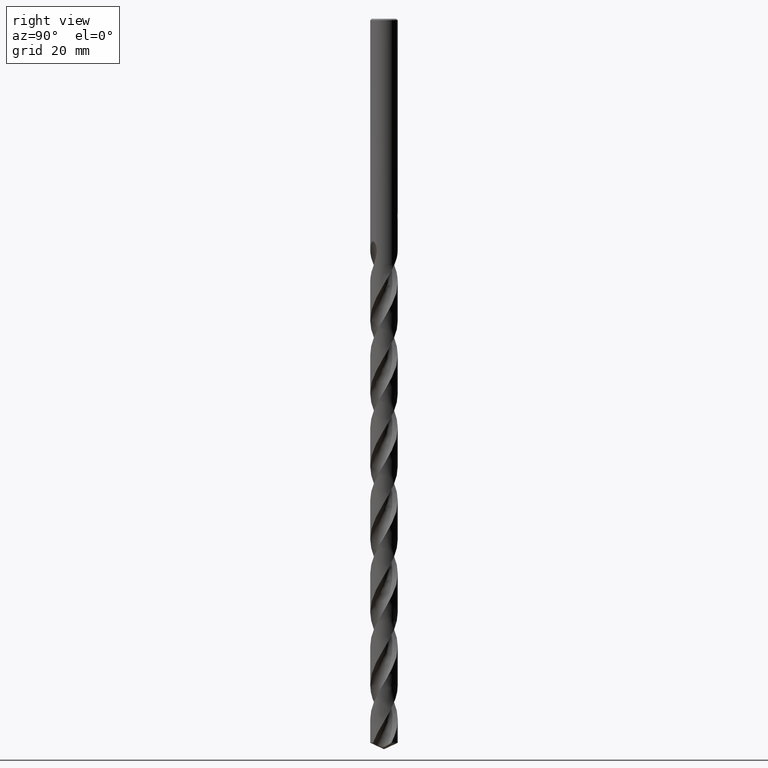
[diagram: clean part render]
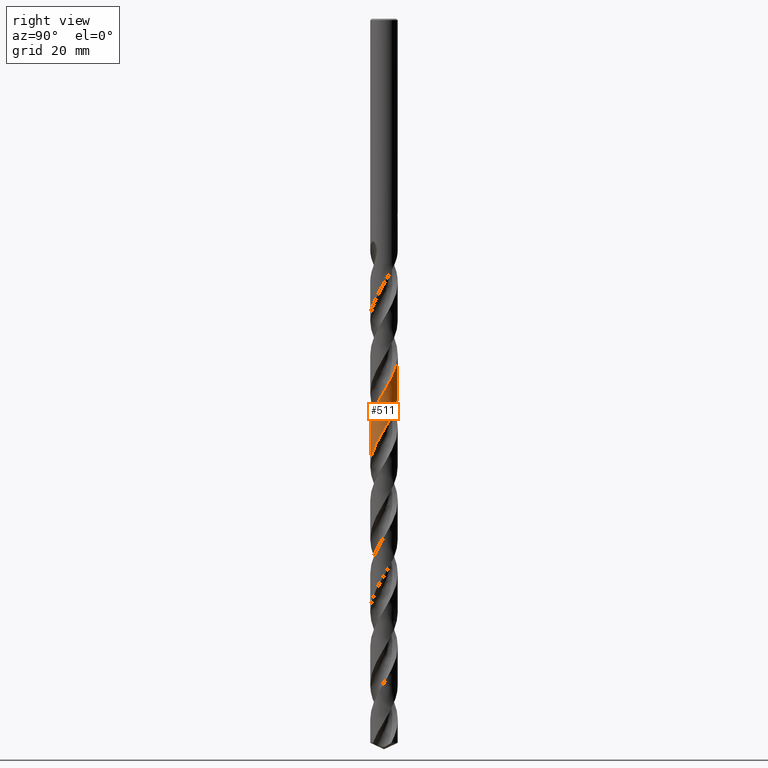
[diagram: same view with one face highlighted and labeled with its STEP entity id]
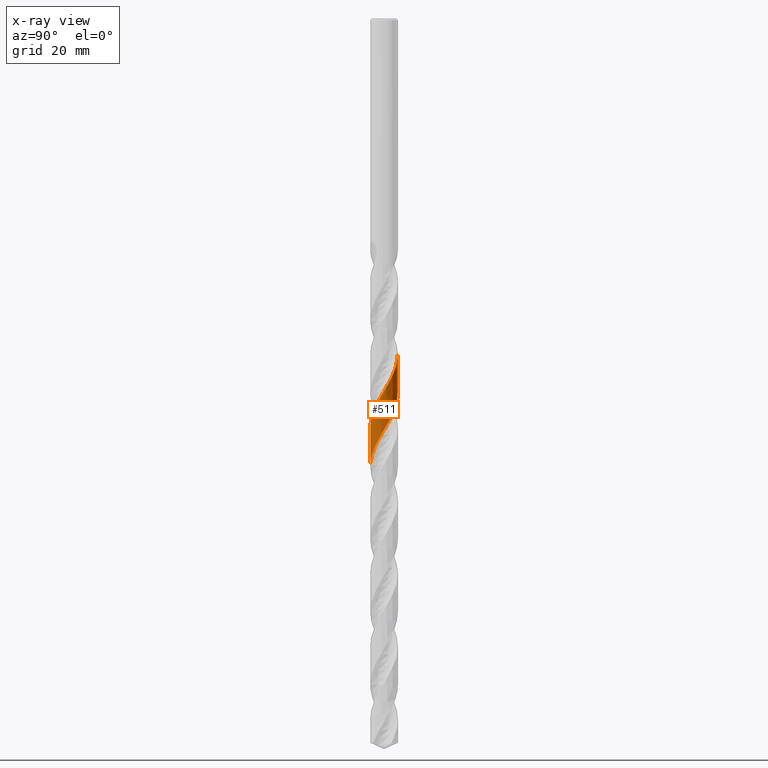
[diagram: x-ray of the same camera — body ghosted, the highlighted face saturated]
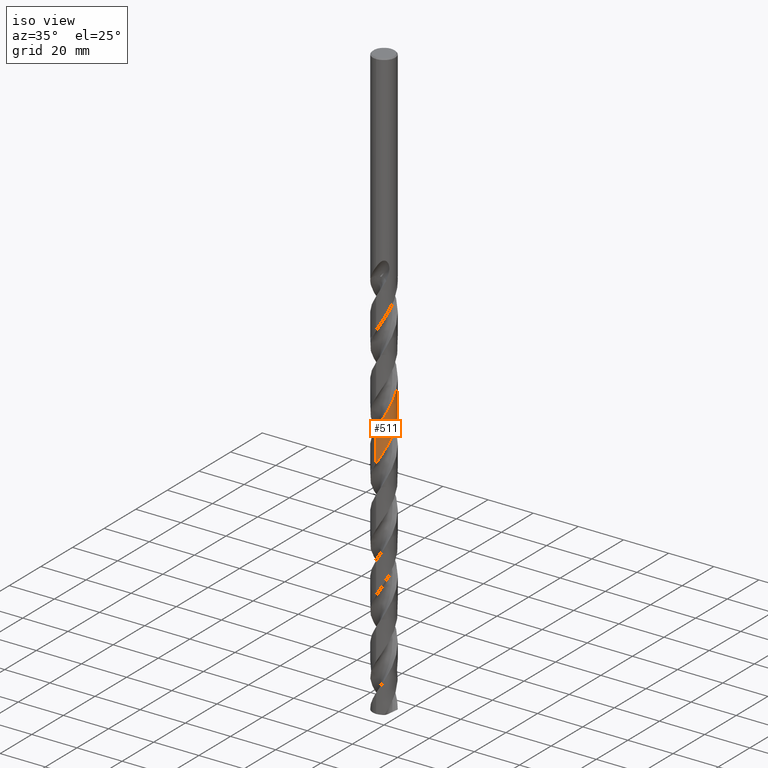
[diagram: same view with one face highlighted and labeled with its STEP entity id]
A machine part, right view. The second image highlights one B-rep face of the part: STEP entity #511.
The next image is the same camera in x-ray: the body ghosted, the highlighted face saturated — about 0% of this face is hidden behind the body in this view.
A second angle (iso view) of the same face is appended — the face is thin or edge-on in the first view.
In plain terms, the highlighted conical surface has half-angle 0 deg.
Its self-contained STEP definition (entity closure, byte-faithful):
#359=VERTEX_POINT('',#937);
#395=EDGE_CURVE('',#559,#359,#975,.T.);
#425=EDGE_CURVE('',#545,#727,#1008,.T.);
#511=ADVANCED_FACE('',(#1104),#1105,.T.);
#545=VERTEX_POINT('',#1142);
#559=VERTEX_POINT('',#1156);
#661=EDGE_CURVE('',#545,#359,#1269,.T.);
#727=VERTEX_POINT('',#1340);
#853=EDGE_CURVE('',#559,#727,#1474,.T.);
#937=CARTESIAN_POINT('',(4.36509085141036E-012,4.99992699948131,-135.889583836875));
#975=LINE('',#6249,#6250);
#1008=LINE('',#8836,#8837);
#1104=FACE_OUTER_BOUND('',#10660,.T.);
#1105=CONICAL_SURFACE('',#10661,4.99995,5.75809787312949E-007);
#1142=CARTESIAN_POINT('',(6.17980756881777E-012,-4.99994223192752,-162.343538856057));
#1156=CARTESIAN_POINT('',(-2.60632550954982E-014,4.99991897141173,-121.947358917492));
#1269=B_SPLINE_CURVE_WITH_KNOTS('',3,(#14558,#14559,#14560,#14561,#14562,#14563,#14564,#14565,#14566,#14567,#14568,#14569,#14570,#14571,#14572,#14573,#14574,#14575,#14576,#14577,#14578,#14579,#14580,#14581,#14582,#14583,#14584,#14585,#14586,#14587,#14588,#14589,#14590,#14591,#14592,#14593,#14594,#14595,#14596,#14597,#14598,#14599,#14600,#14601,#14602,#14603,#14604,#14605,#14606,#14607,#14608,#14609,#14610,#14611,#14612,#14613,#14614,#14615,#14616,#14617,#14618,#14619,#14620,#14621,#14622,#14623,#14624,#14625,#14626,#14627,#14628,#14629,#14630,#14631,#14632,#14633,#14634,#14635,#14636,#14637,#14638,#14639,#14640,#14641,#14642,#14643,#14644,#14645,#14646,#14647,#14648,#14649,#14650,#14651,#14652,#14653,#14654,#14655,#14656,#14657,#14658,#14659,#14660,#14661,#14662,#14663,#14664,#14665,#14666,#14667,#14668,#14669,#14670,#14671,#14672,#14673,#14674,#14675,#14676,#14677,#14678,#14679,#14680,#14681,#14682,#14683,#14684,#14685,#14686,#14687,#14688,#14689,#14690,#14691,#14692,#14693,#14694,#14695,#14696,#14697,#14698,#14699,#14700,#14701,#14702,#14703,#14704,#14705,#14706,#14707,#14708,#14709,#14710,#14711,#14712,#14713,#14714,#14715,#14716,#14717,#14718,#14719,#14720,#14721,#14722,#14723,#14724,#14725,#14726,#14727,#14728,#14729,#14730,#14731,#14732,#14733,#14734,#14735,#14736,#14737,#14738,#14739,#14740,#14741,#14742,#14743,#14744,#14745,#14746,#14747,#14748,#14749,#14750,#14751,#14752,#14753,#14754,#14755,#14756,#14757,#14758,#14759,#14760,#14761,#14762,#14763,#14764,#14765,#14766,#14767,#14768,#14769,#14770,#14771,#14772,#14773,#14774,#14775,#14776,#14777,#14778,#14779,#14780,#14781,#14782,#14783,#14784,#14785,#14786,#14787,#14788,#14789,#14790,#14791,#14792,#14793,#14794,#14795,#14796,#14797,#14798,#14799,#14800,#14801,#14802,#14803,#14804,#14805,#14806,#14807,#14808,#14809,#14810,#14811,#14812,#14813,#14814,#14815,#14816,#14817,#14818,#14819,#14820,#14821,#14822,#14823,#14824,#14825,#14826,#14827,#14828,#14829,#14830,#14831,#14832,#14833,#14834,#14835,#14836,#14837,#14838,#14839,#14840,#14841,#14842,#14843,#14844,#14845,#14846,#14847,#14848,#14849,#14850,#14851,#14852,#14853,#14854,#14855),.UNSPECIFIED.,.F.,.F.,(4,2,2,2,2,2,2,2,2,2,2,2,2,2,2,2,2,2,2,2,2,2,2,2,2,2,2,2,2,2,2,2,2,2,2,2,2,2,2,2,2,2,2,2,2,2,2,2,2,2,2,2,2,2,2,2,2,2,2,2,2,2,2,2,2,2,2,2,2,2,2,2,2,2,2,2,2,2,2,2,2,2,2,2,2,2,2,2,2,2,2,2,2,2,2,2,2,2,2,2,2,2,2,2,2,2,2,2,2,2,2,2,2,2,2,2,2,2,2,2,2,2,2,2,2,2,2,2,2,2,2,2,2,2,2,2,2,2,2,2,2,2,2,2,2,2,2,2,4),(0.0,3.63092053248191,3.7691620184671,6.03348487665055,8.0469296444137,9.15530465158286,10.6858725973857,12.3223462129399,14.6102414959239,15.9651958078881,17.0891393279092,18.7346474536644,21.0373664522481,22.8707935806306,23.1939952154213,25.7825353407723,26.5593347333323,28.0407851094805,29.0085748083132,29.7708620923296,31.2488308606676,33.5406915438034,35.0406320416408,36.5310462128202,37.9115202322241,38.590179684919,39.3775294281662,40.8316956697733,41.5858751965656,42.6262510521607,44.1226818348683,46.5754515316867,47.6414510942108,49.9913822828124,51.5039628617097,52.2626833031142,53.7494600441074,55.0190745081184,55.1800763891425,57.57363837445,58.9840166639243,60.3745749894417,61.0956116948758,61.8881703917055,63.3432411834746,65.5898753520117,67.086220845805,68.3850911603997,69.9196985107638,72.7358457748535,73.6413968446596,75.0052332637271,76.3258413891122,78.5725063265606,80.0708949993093,81.5629012316738,83.1145427181494,85.489986877928,86.9362136758373,87.6938126543482,89.1850316896571,91.6811970772674,92.8109871587646,94.1846573257394,95.7403141464202,96.3746999956665,97.5214003578232,99.0794308170751,101.513364658178,102.932405976061,104.467571446549,106.629686497563,106.788899681004,109.197213874844,110.697348350723,112.104209896364,114.284201900323,115.339270466572,117.795484133206,118.731030565162,120.07509376705,121.706440431129,122.801450923436,122.879788960974,125.236096263122,126.706392577401,128.098291368499,130.737580022881,132.143977262708,132.87706205027,134.413429778621,136.74695391876,137.864965954265,140.162534753403,141.52396441993,142.933364300206,144.416862014505,145.671636411232,147.125399294215,148.045149393847,148.812672158692,151.533197267321,152.22664752454,153.835307301096,154.629364073175,155.374698356365,156.870973258538,157.607551531928,158.735363485831,160.07483495405,162.384287609561,163.889378589707,165.267048038706,166.59189438351,167.23348233804,168.37732797623,170.987607724718,171.313003659003,173.930602077886,174.693763401801,176.169113599196,178.477391666545,180.635091058613,180.96408692391,183.550264963447,184.338622818834,187.180907723722,187.259926042525,189.614008985541,190.86979194547,192.364668463624,194.621764592159,195.778551505454,197.663983594507,198.906554845058,199.454322903826,199.852651721785,200.162922504211,200.411371640628,200.681273317122,201.223370648177,201.892062888729,202.00496394292,202.056619043981,202.110331920396,202.190207229054,202.410570028968,202.741458202628,203.482240467201),.UNSPECIFIED.);
#1340=CARTESIAN_POINT('',(-3.70064187752294E-013,-4.99993420495158,-148.4032132677));
#1474=B_SPLINE_CURVE_WITH_KNOTS('',3,(#17958,#17959,#17960,#17961,#17962,#17963,#17964,#17965,#17966,#17967,#17968,#17969,#17970,#17971,#17972,#17973,#17974,#17975,#17976,#17977,#17978,#17979,#17980,#17981,#17982,#17983,#17984,#17985,#17986,#17987,#17988,#17989,#17990,#17991,#17992,#17993,#17994,#17995,#17996,#17997,#17998,#17999,#18000,#18001,#18002,#18003,#18004,#18005,#18006,#18007,#18008,#18009,#18010,#18011,#18012,#18013,#18014,#18015,#18016,#18017,#18018,#18019,#18020,#18021,#18022,#18023,#18024,#18025,#18026,#18027,#18028,#18029,#18030,#18031,#18032,#18033,#18034,#18035,#18036,#18037,#18038,#18039,#18040,#18041,#18042,#18043,#18044,#18045,#18046,#18047,#18048,#18049,#18050,#18051,#18052,#18053,#18054,#18055,#18056,#18057,#18058,#18059,#18060,#18061,#18062,#18063,#18064,#18065,#18066,#18067,#18068,#18069,#18070,#18071,#18072,#18073,#18074,#18075,#18076,#18077,#18078,#18079,#18080,#18081,#18082,#18083,#18084,#18085,#18086,#18087,#18088,#18089,#18090,#18091,#18092,#18093,#18094,#18095,#18096,#18097,#18098,#18099,#18100,#18101,#18102,#18103,#18104,#18105,#18106,#18107,#18108,#18109,#18110,#18111,#18112,#18113,#18114,#18115,#18116,#18117,#18118,#18119,#18120,#18121,#18122,#18123,#18124,#18125,#18126,#18127,#18128,#18129,#18130,#18131,#18132,#18133,#18134,#18135,#18136,#18137,#18138,#18139,#18140,#18141,#18142,#18143,#18144,#18145,#18146,#18147,#18148,#18149,#18150,#18151,#18152,#18153,#18154,#18155,#18156,#18157,#18158,#18159,#18160,#18161,#18162,#18163,#18164,#18165,#18166,#18167,#18168,#18169,#18170,#18171,#18172,#18173,#18174,#18175,#18176,#18177,#18178,#18179,#18180,#18181,#18182,#18183,#18184,#18185,#18186,#18187,#18188,#18189,#18190,#18191,#18192,#18193,#18194,#18195,#18196,#18197,#18198,#18199,#18200,#18201,#18202,#18203,#18204,#18205,#18206,#18207,#18208,#18209,#18210,#18211,#18212,#18213,#18214,#18215,#18216,#18217,#18218,#18219,#18220,#18221,#18222,#18223,#18224,#18225,#18226,#18227,#18228,#18229,#18230,#18231,#18232,#18233,#18234,#18235,#18236,#18237,#18238,#18239,#18240,#18241,#18242,#18243,#18244,#18245,#18246,#18247,#18248,#18249,#18250,#18251,#18252,#18253,#18254,#18255,#18256,#18257,#18258,#18259,#18260,#18261,#18262,#18263),.UNSPECIFIED.,.F.,.F.,(4,2,2,2,2,2,2,2,2,2,2,2,2,2,2,2,2,2,2,2,2,2,2,2,2,2,2,2,2,2,2,2,2,2,2,2,2,2,2,2,2,2,2,2,2,2,2,2,2,2,2,2,2,2,2,2,2,2,2,2,2,2,2,2,2,2,2,2,2,2,2,2,2,2,2,2,2,2,2,2,2,2,2,2,2,2,2,2,2,2,2,2,2,2,2,2,2,2,2,2,2,2,2,2,2,2,2,2,2,2,2,2,2,2,2,2,2,2,2,2,2,2,2,2,2,2,2,2,2,2,2,2,2,2,2,2,2,2,2,2,2,2,2,2,2,2,2,2,2,2,2,2,4),(0.0,0.435718244669395,0.484115058358754,0.509547155672166,0.526948108052865,0.541206287881215,0.554756775117761,0.569361690210161,0.589321679638141,1.23088281591887,1.33036124792312,1.37777474453361,1.41498424339849,1.45565341487665,1.52114544487498,2.23945374253507,2.49490551552909,2.88014624343983,3.05234088393166,3.19027321112109,3.40695112636331,3.71450287752233,4.08795675222742,4.54635631762029,5.6154586405041,6.66358801104034,7.95430692856862,8.88074156269015,9.91010539370236,11.1951891797998,12.2696482439908,12.363952082922,13.8304381564295,14.7238366680834,15.9303035386406,18.1412035731552,19.0159523272185,21.2524735287823,21.6849867942879,23.3120654346752,24.0700652995132,25.0803370115881,27.048186096614,28.1235027824136,30.0531394477758,31.1905202843448,33.1533961631485,34.238585295826,36.1907352092983,37.2891483193302,39.2178325277,40.355858526431,42.3191103328568,43.4026693540429,45.3532242651398,46.45300489638,48.3816255742354,49.5187014856505,51.4820416487001,52.5643974165011,54.5133176604822,55.6145450368524,57.5431920454964,58.6791618008643,60.642504915263,61.7237804901362,63.6710477217583,64.7737666545098,66.702525281252,67.8372423045221,69.8005053352163,70.8808196599829,72.8264205301536,73.9306688504008,75.8596218246577,76.9929454212579,78.9560475791676,80.0355160325098,81.9794420687737,83.0852504914018,85.0144782377346,86.1462735020148,88.1091357249122,89.1878706648457,91.1301179931045,92.2375102075488,94.1670891904594,95.2972294603141,97.2597759128816,98.3378850879144,100.278455477358,101.387446807391,103.317450810369,104.445815596917,106.407972446904,107.485560625961,109.424460623151,110.535058712832,112.465557412411,113.592034971721,115.553731832232,116.630898841482,118.568140209571,119.680344247009,121.611403147042,122.735889986719,124.697058702968,125.773901363608,127.709501253891,128.823301901087,130.75498238407,131.877383638057,133.837959281179,134.914569876875,136.848550488797,137.96392950896,139.89628755998,141.016518646269,142.976439628191,144.052906179797,145.985294661805,147.102225246887,149.035311557212,150.15329761879,152.112504599725,153.188912015202,155.11974070463,156.238187223916,158.172046896295,159.287723297696,161.246161046282,162.322589140616,164.251892295722,165.371813229801,167.306492431198,168.419799194383,170.3773997645,171.453926600902,173.381736985084,174.503178285877,176.438989084359,177.54916554017,179.503943013977,180.584207849557,182.518687522359,183.626550062319,185.528823229327,186.697684240062,189.027023665197,189.428987736049,190.842674362714,191.752328624974,192.670301681998),.UNSPECIFIED.);
#6249=CARTESIAN_POINT('',(-6.12165648169813E-016,4.99995,-175.834230854612));
#6250=VECTOR('',#18391,1.0);
#8836=CARTESIAN_POINT('',(6.12428459589027E-016,-4.99995,-175.834230854612));
#8837=VECTOR('',#18430,1.0);
#10660=EDGE_LOOP('',(#18528,#18529,#18530,#18531));
#10661=AXIS2_PLACEMENT_3D('',#18532,#18533,#18534);
#14558=CARTESIAN_POINT('',(3.03679725239329,-3.97213575395612,-262.668461709225));
#14559=CARTESIAN_POINT('',(3.52684900053038,-3.59747816609057,-261.627153093576));
#14560=CARTESIAN_POINT('',(3.94248477536741,-3.13609300664103,-260.60778213217));
#14561=CARTESIAN_POINT('',(4.27596659826116,-2.59164810724516,-259.527929359572));
#14562=CARTESIAN_POINT('',(4.28803581695184,-2.57162945997533,-259.488357998234));
#14563=CARTESIAN_POINT('',(4.49556431567559,-2.22188704805663,-258.800390287791));
#14564=CARTESIAN_POINT('',(4.6529224461154,-1.87036089099153,-258.158315731614));
#14565=CARTESIAN_POINT('',(4.87144133905287,-1.17729277840814,-256.9355924767));
#14566=CARTESIAN_POINT('',(4.94054501574536,-0.841472529316061,-256.35830108257));
#14567=CARTESIAN_POINT('',(4.99370751013422,-0.313573823249625,-255.466061096519));
#14568=CARTESIAN_POINT('',(5.00197407816321,-0.1252425680951,-255.150006935315));
#14569=CARTESIAN_POINT('',(4.99631559683138,0.323153473249027,-254.395766751147));
#14570=CARTESIAN_POINT('',(4.97275487728657,0.582225352931965,-253.956790880425));
#14571=CARTESIAN_POINT('',(4.88276567653834,1.11153551822427,-253.051722542234));
#14572=CARTESIAN_POINT('',(4.81355335539646,1.38088878218298,-252.586501787028));
#14573=CARTESIAN_POINT('',(4.59455338748823,2.01020490116651,-251.465827342495));
#14574=CARTESIAN_POINT('',(4.42462729248939,2.36083961806752,-250.810520701846));
#14575=CARTESIAN_POINT('',(4.09199524366141,2.88243766416769,-249.770330008639));
#14576=CARTESIAN_POINT('',(3.95511184395409,3.06754154408989,-249.384713816806));
#14577=CARTESIAN_POINT('',(3.68250003173209,3.38754214522923,-248.676565753594));
#14578=CARTESIAN_POINT('',(3.55085951436434,3.52527826501567,-248.354487464593));
#14579=CARTESIAN_POINT('',(3.20778837358346,3.84548498652609,-247.563432722628));
#14580=CARTESIAN_POINT('',(2.98824810932144,4.01849171914976,-247.095891120976));
#14581=CARTESIAN_POINT('',(2.42907980786266,4.38773381475704,-245.968966436169));
#14582=CARTESIAN_POINT('',(2.07897592493062,4.56404733719326,-245.309747604072));
#14583=CARTESIAN_POINT('',(1.41934163223292,4.80439468775879,-244.129284799316));
#14584=CARTESIAN_POINT('',(1.11817342190909,4.88320653948423,-243.609145428385));
#14585=CARTESIAN_POINT('',(0.758317620584911,4.94245165062949,-242.992866617147));
#14586=CARTESIAN_POINT('',(0.704251990693594,4.95044629798671,-242.900433810352));
#14587=CARTESIAN_POINT('',(0.214727623276179,5.01462025655013,-242.066736351297));
#14588=CARTESIAN_POINT('',(-0.226119043530752,5.01414293545558,-241.334973736004));
#14589=CARTESIAN_POINT('',(-0.792079420933305,4.93860828613344,-240.372189503131));
#14590=CARTESIAN_POINT('',(-0.921806281574668,4.9160439911743,-240.1494715437));
#14591=CARTESIAN_POINT('',(-1.29612853601021,4.83559749634794,-239.503540470171));
#14592=CARTESIAN_POINT('',(-1.53766844494301,4.7643319029194,-239.081643928868));
#14593=CARTESIAN_POINT('',(-1.92695322197892,4.61668454483499,-238.381843295245));
#14594=CARTESIAN_POINT('',(-2.07761163649756,4.55085917458434,-238.105724709869));
#14595=CARTESIAN_POINT('',(-2.34034121785875,4.42033558567147,-237.610972536249));
#14596=CARTESIAN_POINT('',(-2.45368292152409,4.35843832256522,-237.392515302428));
#14597=CARTESIAN_POINT('',(-2.77960662233383,4.16369771196052,-236.751950707281));
#14598=CARTESIAN_POINT('',(-2.98493907330163,4.01908708162031,-236.331184133773));
#14599=CARTESIAN_POINT('',(-3.4794024645906,3.61182352751185,-235.254437576519));
#14600=CARTESIAN_POINT('',(-3.74985225988296,3.33014236604486,-234.598059108373));
#14601=CARTESIAN_POINT('',(-4.13868758342092,2.81708113427126,-233.514629911937));
#14602=CARTESIAN_POINT('',(-4.27675524905171,2.6026955833841,-233.087890268728));
#14603=CARTESIAN_POINT('',(-4.51825375055626,2.15620430655572,-232.233503596708));
#14604=CARTESIAN_POINT('',(-4.62144350584408,1.92509739196578,-231.806125528175));
#14605=CARTESIAN_POINT('',(-4.78576428403846,1.46666750442723,-230.985891891226));
#14606=CARTESIAN_POINT('',(-4.84923840400723,1.2408330986814,-230.592955863857));
#14607=CARTESIAN_POINT('',(-4.91996428893848,0.898358144747401,-230.004952548974));
#14608=CARTESIAN_POINT('',(-4.93934127214079,0.784824415442242,-229.8112673705));
#14609=CARTESIAN_POINT('',(-4.97267809891112,0.538599079345096,-229.392338592288));
#14610=CARTESIAN_POINT('',(-4.98526189782899,0.405880206264639,-229.166840042601));
#14611=CARTESIAN_POINT('',(-5.00596484469284,0.0269631410384366,-228.526521773652));
#14612=CARTESIAN_POINT('',(-5.00124162868938,-0.219831928044886,-228.112867281383));
#14613=CARTESIAN_POINT('',(-4.96632862222245,-0.593101914564319,-227.482733120135));
#14614=CARTESIAN_POINT('',(-4.9495219443427,-0.719981678702393,-227.267722341516));
#14615=CARTESIAN_POINT('',(-4.89804995193001,-1.01980573469632,-226.75539953996));
#14616=CARTESIAN_POINT('',(-4.85908007734329,-1.19167867345868,-226.457517524418));
#14617=CARTESIAN_POINT('',(-4.74228326059205,-1.60455628608286,-225.733652482255));
#14618=CARTESIAN_POINT('',(-4.65491095063018,-1.8428196908748,-225.308539736953));
#14619=CARTESIAN_POINT('',(-4.37715409536052,-2.45220396068134,-224.182859801159));
#14620=CARTESIAN_POINT('',(-4.15820566336781,-2.80748639151029,-223.481945441659));
#14621=CARTESIAN_POINT('',(-3.78460511742851,-3.27248946855388,-222.478666277347));
#14622=CARTESIAN_POINT('',(-3.66387001594869,-3.40712201478949,-222.175385563045));
#14623=CARTESIAN_POINT('',(-3.25446463969548,-3.81666345364789,-221.201478799643));
#14624=CARTESIAN_POINT('',(-2.94027404553087,-4.0636562932162,-220.529591750792));
#14625=CARTESIAN_POINT('',(-2.38086894323426,-4.40420125936429,-219.42850012411));
#14626=CARTESIAN_POINT('',(-2.15212085892136,-4.52035256786608,-218.999057333606));
#14627=CARTESIAN_POINT('',(-1.7972447773613,-4.66756115286884,-218.351064009222));
#14628=CARTESIAN_POINT('',(-1.67699885482708,-4.7120991623359,-218.134148679082));
#14629=CARTESIAN_POINT('',(-1.31612453659973,-4.83019279298167,-217.493551610289));
#14630=CARTESIAN_POINT('',(-1.07133345486789,-4.89034979651474,-217.071253423025));
#14631=CARTESIAN_POINT('',(-0.610381642810766,-4.96724274082002,-216.285759531477));
#14632=CARTESIAN_POINT('',(-0.396425928676789,-4.98884142759039,-215.924871175926));
#14633=CARTESIAN_POINT('',(-0.155013423565041,-4.99764328951071,-215.516602325224));
#14634=CARTESIAN_POINT('',(-0.127865799887101,-4.99841165258916,-215.470669986507));
#14635=CARTESIAN_POINT('',(0.303806896638734,-5.00710343673909,-214.741051363192));
#14636=CARTESIAN_POINT('',(0.708166128933562,-4.96615262324323,-214.06481631168));
#14637=CARTESIAN_POINT('',(1.33674542113703,-4.82389088197576,-212.979897654434));
#14638=CARTESIAN_POINT('',(1.56545973096618,-4.75458163669201,-212.576199219534));
#14639=CARTESIAN_POINT('',(2.00822687428889,-4.58499074985078,-211.777392478626));
#14640=CARTESIAN_POINT('',(2.22196997577965,-4.48532283790722,-211.382323571386));
#14641=CARTESIAN_POINT('',(2.53488592141214,-4.31149563844671,-210.780483343392));
#14642=CARTESIAN_POINT('',(2.63941422187165,-4.24830219262377,-210.57511666558));
#14643=CARTESIAN_POINT('',(2.8535525413225,-4.10790853558509,-210.143404068767));
#14644=CARTESIAN_POINT('',(2.96252618938343,-4.03002123208714,-209.916838962555));
#14645=CARTESIAN_POINT('',(3.26240872115043,-3.79695111120396,-209.27598394675));
#14646=CARTESIAN_POINT('',(3.44540692503426,-3.63175615106914,-208.86284489535));
#14647=CARTESIAN_POINT('',(3.87864369534157,-3.1781646779032,-207.808585237795));
#14648=CARTESIAN_POINT('',(4.10909493684658,-2.87395002410798,-207.167148783156));
#14649=CARTESIAN_POINT('',(4.4317520088653,-2.32881526929892,-206.10071198543));
#14650=CARTESIAN_POINT('',(4.54401565731064,-2.10137307377957,-205.676205116089));
#14651=CARTESIAN_POINT('',(4.72065738655237,-1.66235237670808,-204.87998720161));
#14652=CARTESIAN_POINT('',(4.78907910492379,-1.45342836074511,-204.50884247842));
#14653=CARTESIAN_POINT('',(4.90779237021549,-0.990117853328076,-203.702076757129));
#14654=CARTESIAN_POINT('',(4.95256491182284,-0.734290501817078,-203.267150676236));
#14655=CARTESIAN_POINT('',(5.02261911304886,-0.00146848958383272,-202.029638188285));
#14656=CARTESIAN_POINT('',(4.99993557842148,0.476814337909743,-201.227502048958));
#14657=CARTESIAN_POINT('',(4.8809469770806,1.095205276557,-200.169034694135));
#14658=CARTESIAN_POINT('',(4.84510864402533,1.2441823441639,-199.911854137571));
#14659=CARTESIAN_POINT('',(4.73837629335736,1.61262780324162,-199.266200931251));
#14660=CARTESIAN_POINT('',(4.65908746874491,1.82908074139639,-198.876831838329));
#14661=CARTESIAN_POINT('',(4.47427141597245,2.24281447657019,-198.113185403572));
#14662=CARTESIAN_POINT('',(4.36976436548505,2.44021720121782,-197.738806997748));
#14663=CARTESIAN_POINT('',(4.05243109134547,2.95326417333008,-196.72477763016));
#14664=CARTESIAN_POINT('',(3.81656509566927,3.25231187874656,-196.084271973013));
#14665=CARTESIAN_POINT('',(3.37088563591644,3.7014633137364,-195.019350719734));
#14666=CARTESIAN_POINT('',(3.17919737438973,3.86734878271623,-194.595086645436));
#14667=CARTESIAN_POINT('',(2.77323052910318,4.16801216361831,-193.744807198474));
#14668=CARTESIAN_POINT('',(2.55985947113351,4.30234146418437,-193.319027248923));
#14669=CARTESIAN_POINT('',(2.10570300314564,4.54248871382372,-192.453635184526));
#14670=CARTESIAN_POINT('',(1.86481521925579,4.64658849198133,-192.014503104806));
#14671=CARTESIAN_POINT('',(1.23695507082424,4.86113224961212,-190.8984677664));
#14672=CARTESIAN_POINT('',(0.843007834368305,4.94470594520506,-190.221656601147));
#14673=CARTESIAN_POINT('',(0.199618468041548,5.00194752921614,-189.135814827536));
#14674=CARTESIAN_POINT('',(-0.0448204222944823,5.00569856336303,-188.726398138613));
#14675=CARTESIAN_POINT('',(-0.415760615102553,4.98427812137683,-188.099702759341));
#14676=CARTESIAN_POINT('',(-0.542790863090992,4.97204701705413,-187.883815257921));
#14677=CARTESIAN_POINT('',(-0.918400154838108,4.9213082937374,-187.244356972072));
#14678=CARTESIAN_POINT('',(-1.16488705923295,4.86889128787819,-186.822176386727));
#14679=CARTESIAN_POINT('',(-1.81147893045852,4.67931926369002,-185.689579208432));
#14680=CARTESIAN_POINT('',(-2.1994129274682,4.50998295640481,-184.978797252236));
#14681=CARTESIAN_POINT('',(-2.72545328389866,4.19617406081665,-183.94855404414));
#14682=CARTESIAN_POINT('',(-2.8836145464447,4.08909885330291,-183.628317762754));
#14683=CARTESIAN_POINT('',(-3.21964385634837,3.83239754191208,-182.917012110208));
#14684=CARTESIAN_POINT('',(-3.3937601873658,3.67905361523623,-182.525516435327));
#14685=CARTESIAN_POINT('',(-3.74048406122019,3.32820281229554,-181.693536041824));
#14686=CARTESIAN_POINT('',(-3.90989035879736,3.12749596146366,-181.253781463313));
#14687=CARTESIAN_POINT('',(-4.12532971768707,2.82712701022357,-180.632388811059));
#14688=CARTESIAN_POINT('',(-4.18487907052526,2.7382010411159,-180.452487934801));
#14689=CARTESIAN_POINT('',(-4.34382408162023,2.48355903256002,-179.946869394045));
#14690=CARTESIAN_POINT('',(-4.43644333846118,2.31403600290761,-179.6203060594));
#14691=CARTESIAN_POINT('',(-4.63129814184354,1.90247184485424,-178.852615128618));
#14692=CARTESIAN_POINT('',(-4.72481007567007,1.65672731603904,-178.412475429145));
#14693=CARTESIAN_POINT('',(-4.91395099034363,1.01051065072561,-177.280352522483));
#14694=CARTESIAN_POINT('',(-4.98028770855108,0.603964301753421,-176.588165277944));
#14695=CARTESIAN_POINT('',(-5.00546922943743,-0.0454250765816334,-175.495459840057));
#14696=CARTESIAN_POINT('',(-4.99754994085552,-0.284757242834248,-175.094455867427));
#14697=CARTESIAN_POINT('',(-4.94557549678206,-0.779485305327184,-174.256191203304));
#14698=CARTESIAN_POINT('',(-4.89865357053204,-1.0342834797684,-173.8189687339));
#14699=CARTESIAN_POINT('',(-4.7384216286295,-1.63702851672376,-172.769602871577));
#14700=CARTESIAN_POINT('',(-4.60659407279148,-1.97758542738244,-172.16107436328));
#14701=CARTESIAN_POINT('',(-4.42708786077636,-2.32402330049975,-171.501492468478));
#14702=CARTESIAN_POINT('',(-4.41458972269639,-2.34767801498517,-171.456245269649));
#14703=CARTESIAN_POINT('',(-4.20941242317168,-2.72855032677415,-170.725169616022));
#14704=CARTESIAN_POINT('',(-3.97401226985622,-3.06139436543178,-170.046907118854));
#14705=CARTESIAN_POINT('',(-3.53009432141247,-3.54994173546192,-168.935570513117));
#14706=CARTESIAN_POINT('',(-3.34587342469174,-3.72407710649163,-168.507472745097));
#14707=CARTESIAN_POINT('',(-2.96461233742239,-4.03323165545064,-167.680892997226));
#14708=CARTESIAN_POINT('',(-2.76959527293205,-4.16957145486481,-167.282393469477));
#14709=CARTESIAN_POINT('',(-2.2492806999841,-4.48061629896731,-166.262936324214));
#14710=CARTESIAN_POINT('',(-1.91330769947497,-4.63404882280938,-165.641297737833));
#14711=CARTESIAN_POINT('',(-1.39403194883309,-4.80498697041902,-164.721809310903));
#14712=CARTESIAN_POINT('',(-1.22181787327783,-4.85163737747191,-164.422564271205));
#14713=CARTESIAN_POINT('',(-0.641610073418098,-4.97594763559456,-163.42460928203));
#14714=CARTESIAN_POINT('',(-0.226602044682794,-5.01203075736629,-162.724782462332));
#14715=CARTESIAN_POINT('',(0.346312130417048,-4.99044033141445,-161.760992832203));
#14716=CARTESIAN_POINT('',(0.503911697074858,-4.97699329426439,-161.495564280455));
#14717=CARTESIAN_POINT('',(0.885589270303878,-4.92612292272831,-160.847646431185));
#14718=CARTESIAN_POINT('',(1.1080254056307,-4.88087991641912,-160.464372802911));
#14719=CARTESIAN_POINT('',(1.5914505016648,-4.7478692065097,-159.618927768043));
#14720=CARTESIAN_POINT('',(1.85027291109875,-4.65314517628831,-159.157772435058));
#14721=CARTESIAN_POINT('',(2.26801318858568,-4.45978667220407,-158.383771637101));
#14722=CARTESIAN_POINT('',(2.43101117404009,-4.37304053860714,-158.073426578959));
#14723=CARTESIAN_POINT('',(2.59980751605731,-4.27089805582712,-157.739829364394));
#14724=CARTESIAN_POINT('',(2.61107741290702,-4.26401758478154,-157.717505831714));
#14725=CARTESIAN_POINT('',(2.96165891358732,-4.048058624433,-157.021573512732));
#14726=CARTESIAN_POINT('',(3.2751469559812,-3.79900924698536,-156.355115184474));
#14727=CARTESIAN_POINT('',(3.73132238891231,-3.33748161080683,-155.262948871863));
#14728=CARTESIAN_POINT('',(3.89289447228027,-3.14750453603566,-154.841775088361));
#14729=CARTESIAN_POINT('',(4.17859696510412,-2.75577501396114,-154.024907987899));
#14730=CARTESIAN_POINT('',(4.30397940753462,-2.55555997689413,-153.629177221395));
#14731=CARTESIAN_POINT('',(4.62499178582321,-1.95173703174993,-152.479392194748));
#14732=CARTESIAN_POINT('',(4.78108002385335,-1.53007717751734,-151.72515450646));
#14733=CARTESIAN_POINT('',(4.93114235491034,-0.860303418286424,-150.571426941726));
#14734=CARTESIAN_POINT('',(4.96650340992317,-0.624351999516902,-150.171729041637));
#14735=CARTESIAN_POINT('',(4.99452912042081,-0.2634599559078,-149.561025431503));
#14736=CARTESIAN_POINT('',(4.99952571613012,-0.139605551392639,-149.35135674289));
#14737=CARTESIAN_POINT('',(5.00071713214357,0.244560765682173,-148.703359568368));
#14738=CARTESIAN_POINT('',(4.98123413943403,0.504588397042542,-148.266718139375));
#14739=CARTESIAN_POINT('',(4.88112730205281,1.15356580846365,-147.162863054293));
#14740=CARTESIAN_POINT('',(4.77455517887673,1.53609180823075,-146.495285578467));
#14741=CARTESIAN_POINT('',(4.55186650590172,2.07744772256948,-145.510506307582));
#14742=CARTESIAN_POINT('',(4.46981210059182,2.24857047734271,-145.192287652068));
#14743=CARTESIAN_POINT('',(4.19000967358605,2.75590795994129,-144.217877621885));
#14744=CARTESIAN_POINT('',(3.96263191491892,3.07388990559778,-143.560465763801));
#14745=CARTESIAN_POINT('',(3.54517853581216,3.53332209742423,-142.516700393367));
#14746=CARTESIAN_POINT('',(3.37830299386146,3.69317869329229,-142.129634396555));
#14747=CARTESIAN_POINT('',(3.01771697587507,3.99370683999941,-141.338865679384));
#14748=CARTESIAN_POINT('',(2.82364216041784,4.13321152141867,-140.935174632926));
#14749=CARTESIAN_POINT('',(2.4059296465689,4.39022224823785,-140.109474233189));
#14750=CARTESIAN_POINT('',(2.18205185394768,4.50569046500504,-139.687842452724));
#14751=CARTESIAN_POINT('',(1.75442503245439,4.68685069773112,-138.906474264189));
#14752=CARTESIAN_POINT('',(1.55362001820438,4.75715458364299,-138.547367008062));
#14753=CARTESIAN_POINT('',(1.11285614049249,4.88069622269309,-137.774964370631));
#14754=CARTESIAN_POINT('',(0.871409261364683,4.92956624958221,-137.362126801667));
#14755=CARTESIAN_POINT('',(0.472340939800573,4.98000648547179,-136.686027096456));
#14756=CARTESIAN_POINT('',(0.317027857283986,4.99229034495696,-136.424381113345));
#14757=CARTESIAN_POINT('',(0.0318179047203223,5.00151054541429,-135.943412335396));
#14758=CARTESIAN_POINT('',(-0.0978475241195843,5.00064678910783,-135.724142711469));
#14759=CARTESIAN_POINT('',(-0.68581426333139,4.97389793838559,-134.730626009204));
#14760=CARTESIAN_POINT('',(-1.13913489642568,4.89000523295707,-133.966414519997));
#14761=CARTESIAN_POINT('',(-1.68561451512144,4.70867655970953,-132.994401097273));
#14762=CARTESIAN_POINT('',(-1.79527409041352,4.66797411726342,-132.796605703716));
#14763=CARTESIAN_POINT('',(-2.15509356389834,4.51981823232536,-132.140408723868));
#14764=CARTESIAN_POINT('',(-2.39789937592791,4.39585753568526,-131.684185983041));
#14765=CARTESIAN_POINT('',(-2.74403084325959,4.18182080916282,-130.999929689437));
#14766=CARTESIAN_POINT('',(-2.8553820841026,4.10658431529686,-130.773985090128));
#14767=CARTESIAN_POINT('',(-3.06487577156277,3.95242131938742,-130.33521394042));
#14768=CARTESIAN_POINT('',(-3.16333802781025,3.8740660849777,-130.122337038555));
#14769=CARTESIAN_POINT('',(-3.45057866452181,3.62721007226243,-129.48336982472));
#14770=CARTESIAN_POINT('',(-3.62977232171316,3.44793095948583,-129.058741643139));
#14771=CARTESIAN_POINT('',(-3.87605158191575,3.16085743965284,-128.422951974878));
#14772=CARTESIAN_POINT('',(-3.95365700378462,3.06322399161889,-128.213383886469));
#14773=CARTESIAN_POINT('',(-4.14051054709656,2.80923094707515,-127.682214514127));
#14774=CARTESIAN_POINT('',(-4.24452791536595,2.64943838317099,-127.359893670437));
#14775=CARTESIAN_POINT('',(-4.45166176366859,2.28760929210872,-126.657057949198));
#14776=CARTESIAN_POINT('',(-4.55075629329298,2.08357314743408,-126.276852600007));
#14777=CARTESIAN_POINT('',(-4.78225157990444,1.51069845922216,-125.238289231056));
#14778=CARTESIAN_POINT('',(-4.88563981907862,1.13243793646962,-124.579187103528));
#14779=CARTESIAN_POINT('',(-4.98194351471231,0.494254450344758,-123.493090144955));
#14780=CARTESIAN_POINT('',(-5.000641917422,0.239964616168347,-123.066383217585));
#14781=CARTESIAN_POINT('',(-4.99921713352091,-0.247623401966883,-122.245573360329));
#14782=CARTESIAN_POINT('',(-4.98226252871105,-0.480026174568301,-121.851914067517));
#14783=CARTESIAN_POINT('',(-4.91738678356405,-0.931983373469618,-121.082498168365));
#14784=CARTESIAN_POINT('',(-4.8707160013442,-1.15133935874196,-120.706620377498));
#14785=CARTESIAN_POINT('',(-4.77972509087689,-1.47146108859257,-120.147167539427));
#14786=CARTESIAN_POINT('',(-4.74666395931393,-1.57483855527645,-119.964738781735));
#14787=CARTESIAN_POINT('',(-4.64545890965334,-1.85910092908402,-119.456527099643));
#14788=CARTESIAN_POINT('',(-4.5702077254393,-2.03707051086223,-119.129910553283));
#14789=CARTESIAN_POINT('',(-4.29007117698145,-2.60549498430395,-118.061534698984));
#14790=CARTESIAN_POINT('',(-4.04404967350407,-2.97291181886577,-117.32784206671));
#14791=CARTESIAN_POINT('',(-3.71732816591956,-3.3441941817123,-116.492153375989));
#14792=CARTESIAN_POINT('',(-3.6804448663824,-3.38474582855492,-116.399449784506));
#14793=CARTESIAN_POINT('',(-3.33994123096162,-3.74692362943413,-115.560058933105));
#14794=CARTESIAN_POINT('',(-2.99570483530429,-4.0274757975587,-114.823080031919));
#14795=CARTESIAN_POINT('',(-2.50904600346855,-4.3267150016149,-113.859557434677));
#14796=CARTESIAN_POINT('',(-2.39676224010794,-4.38990730556416,-113.641591649409));
#14797=CARTESIAN_POINT('',(-2.06036854140102,-4.56246745033288,-113.003696186792));
#14798=CARTESIAN_POINT('',(-1.83018915140737,-4.65961017131763,-112.585081469223));
#14799=CARTESIAN_POINT('',(-1.22284784546392,-4.86380267537085,-111.508069342577));
#14800=CARTESIAN_POINT('',(-0.83925457231865,-4.9444231852561,-110.849287773683));
#14801=CARTESIAN_POINT('',(-0.0866681456531496,-5.01247416757718,-109.577559234422));
#14802=CARTESIAN_POINT('',(0.278929603081888,-5.0053783209441,-108.968301541954));
#14803=CARTESIAN_POINT('',(0.694984854561063,-4.95168530775138,-108.259566286672));
#14804=CARTESIAN_POINT('',(0.749872400239923,-4.94367195943466,-108.165744299031));
#14805=CARTESIAN_POINT('',(1.23605844279021,-4.86438555565291,-107.33386374634));
#14806=CARTESIAN_POINT('',(1.65635782313384,-4.73780899691605,-106.605152036773));
#14807=CARTESIAN_POINT('',(2.17656775630477,-4.50326779226671,-105.643005710618));
#14808=CARTESIAN_POINT('',(2.29569016216885,-4.44371823179352,-105.417724324015));
#14809=CARTESIAN_POINT('',(2.83282115274407,-4.14785248810739,-104.382931954122));
#14810=CARTESIAN_POINT('',(3.21732090034969,-3.85714539185152,-103.585004309063));
#14811=CARTESIAN_POINT('',(3.56372206427903,-3.50701322099005,-102.752340495535));
#14812=CARTESIAN_POINT('',(3.57305312492064,-3.49750609668944,-102.729815213076));
#14813=CARTESIAN_POINT('',(3.8600078253734,-3.20278135570736,-102.034540190426));
#14814=CARTESIAN_POINT('',(4.10293065388293,-2.88518418865672,-101.368868901753));
#14815=CARTESIAN_POINT('',(4.41399353820784,-2.35818693304482,-100.338882919821));
#14816=CARTESIAN_POINT('',(4.5102403081857,-2.16838253679373,-99.9793885934977));
#14817=CARTESIAN_POINT('',(4.69379910548385,-1.74103388526806,-99.1949078068127));
#14818=CARTESIAN_POINT('',(4.77592746473247,-1.50126754445861,-98.7704889628005));
#14819=CARTESIAN_POINT('',(4.93571312051849,-0.885560703459419,-97.7016160876331));
#14820=CARTESIAN_POINT('',(4.98891948732036,-0.505702209429872,-97.0571943019793));
#14821=CARTESIAN_POINT('',(5.00321885012554,0.0720623829197309,-96.0841860334727));
#14822=CARTESIAN_POINT('',(4.99655965653015,0.267998245435383,-95.7552452929932));
#14823=CARTESIAN_POINT('',(4.94883150003414,0.781083702312158,-94.8885435671346));
#14824=CARTESIAN_POINT('',(4.88890216794574,1.09502788522415,-94.3485462005774));
#14825=CARTESIAN_POINT('',(4.74088411785701,1.60221508004361,-93.4575115947697));
#14826=CARTESIAN_POINT('',(4.66881991191768,1.80181724535181,-93.1002178233141));
#14827=CARTESIAN_POINT('',(4.54618930617452,2.08326822752517,-92.5915263032342));
#14828=CARTESIAN_POINT('',(4.50784066177393,2.16488983170543,-92.4441510134103));
#14829=CARTESIAN_POINT('',(4.43690202716901,2.30593520268734,-92.1841703734009));
#14830=CARTESIAN_POINT('',(4.40600221152056,2.3644223526878,-92.0746494218066));
#14831=CARTESIAN_POINT('',(4.34929248501866,2.46683990838216,-91.8792220607893));
#14832=CARTESIAN_POINT('',(4.32387706509545,2.51106599190649,-91.7936753172321));
#14833=CARTESIAN_POINT('',(4.27931567214578,2.58611270512072,-91.6456117361468));
#14834=CARTESIAN_POINT('',(4.25928960250374,2.61895364276162,-91.5796069449199));
#14835=CARTESIAN_POINT('',(4.21714462690573,2.68633913293749,-91.4413762868166));
#14836=CARTESIAN_POINT('',(4.19501749100326,2.72074891230828,-91.3691812313198));
#14837=CARTESIAN_POINT('',(4.12804657925025,2.82220311623739,-91.1509821227473));
#14838=CARTESIAN_POINT('',(4.09361208493339,2.87159969848799,-91.0372160052857));
#14839=CARTESIAN_POINT('',(4.00364651575232,2.99616861313028,-90.7531769067803));
#14840=CARTESIAN_POINT('',(3.95171485742932,3.06439427376885,-90.5967497095883));
#14841=CARTESIAN_POINT('',(3.88807852522224,3.14357580744332,-90.4146225120444));
#14842=CARTESIAN_POINT('',(3.87372178095812,3.16128427935045,-90.3737140253098));
#14843=CARTESIAN_POINT('',(3.85449712924369,3.18464278629045,-90.3206190641761));
#14844=CARTESIAN_POINT('',(3.84840254174939,3.19200531627076,-90.3039883613893));
#14845=CARTESIAN_POINT('',(3.83584579332146,3.20708503747108,-90.2701357248664));
#14846=CARTESIAN_POINT('',(3.82937935186557,3.2148038439892,-90.2529184925407));
#14847=CARTESIAN_POINT('',(3.81313048225542,3.23407948709202,-90.2101934011981));
#14848=CARTESIAN_POINT('',(3.80326893460687,3.24567226019852,-90.1847370343647));
#14849=CARTESIAN_POINT('',(3.7656354933256,3.28949740904627,-90.0893740708009));
#14850=CARTESIAN_POINT('',(3.73690081259123,3.32213304499932,-90.020116169664));
#14851=CARTESIAN_POINT('',(3.66202002336627,3.40486424762381,-89.8485033949657));
#14852=CARTESIAN_POINT('',(3.61450367283419,3.45536085533217,-89.7472776176376));
#14853=CARTESIAN_POINT('',(3.45148142169232,3.62106287677925,-89.4243069103443));
#14854=CARTESIAN_POINT('',(3.32605979587107,3.73755747718274,-89.2113679184963));
#14855=CARTESIAN_POINT('',(3.18604063266169,3.85332909648509,-89.005));
#17958=CARTESIAN_POINT('',(3.47531599367033,-3.59460412047406,-89.005));
#17959=CARTESIAN_POINT('',(3.42468505080907,-3.64355496048337,-89.1320228740223));
#17960=CARTESIAN_POINT('',(3.37260652015904,-3.69184736805829,-89.2594740710729));
#17961=CARTESIAN_POINT('',(3.31262006296057,-3.74507875848979,-89.4010412977107));
#17962=CARTESIAN_POINT('',(3.30660280408621,-3.75039263739465,-89.4151869292218));
#17963=CARTESIAN_POINT('',(3.29739019332052,-3.75848883023961,-89.4367588814987));
#17964=CARTESIAN_POINT('',(3.2942109629533,-3.76127566135513,-89.4441878551306));
#17965=CARTESIAN_POINT('',(3.28884637170604,-3.76596608634517,-89.4566972489798));
#17966=CARTESIAN_POINT('',(3.28666428269602,-3.76787061340008,-89.461778284632));
#17967=CARTESIAN_POINT('',(3.2826891079304,-3.77133405851845,-89.4710212872435));
#17968=CARTESIAN_POINT('',(3.28089698623593,-3.77289323456309,-89.4751834057166));
#17969=CARTESIAN_POINT('',(3.27739801450303,-3.7759330169186,-89.4833000321616));
#17970=CARTESIAN_POINT('',(3.27569138124003,-3.77741365216541,-89.487254511833));
#17971=CARTESIAN_POINT('',(3.27214176274624,-3.78048900045422,-89.4954701866396));
#17972=CARTESIAN_POINT('',(3.27029854167835,-3.78208358993438,-89.4997312101968));
#17973=CARTESIAN_POINT('',(3.26593154068283,-3.78585594309917,-89.5098142862626));
#17974=CARTESIAN_POINT('',(3.26340612419296,-3.78803307523917,-89.5156356353236));
#17975=CARTESIAN_POINT('',(3.1795833956911,-3.86014945625919,-89.7085348497046));
#17976=CARTESIAN_POINT('',(3.09606539736384,-3.92754428762329,-89.8905348282926));
#17977=CARTESIAN_POINT('',(2.99406802840642,-4.00435472958504,-90.1027749970556));
#17978=CARTESIAN_POINT('',(2.98029975899504,-4.01461280059634,-90.1312317362451));
#17979=CARTESIAN_POINT('',(2.95984708488408,-4.02968724056223,-90.1732416129147));
#17980=CARTESIAN_POINT('',(2.95322854175356,-4.03454030761687,-90.1867960154832));
#17981=CARTESIAN_POINT('',(2.9413846313767,-4.04318005872956,-90.2109833089656));
#17982=CARTESIAN_POINT('',(2.93616665414238,-4.04697097466353,-90.2216157839803));
#17983=CARTESIAN_POINT('',(2.92522384573826,-4.05488870076586,-90.2438662111532));
#17984=CARTESIAN_POINT('',(2.91949771157874,-4.05901345273001,-90.2554824212082));
#17985=CARTESIAN_POINT('',(2.90451921780007,-4.06975488483884,-90.2858011575224));
#17986=CARTESIAN_POINT('',(2.89525019561689,-4.07635419045684,-90.3044965333808));
#17987=CARTESIAN_POINT('',(2.78396691696282,-4.15501316092262,-90.5282219542068));
#17988=CARTESIAN_POINT('',(2.67842203072533,-4.22392869693471,-90.7349168664054));
#17989=CARTESIAN_POINT('',(2.52897783162553,-4.31339432793851,-91.0243988767072));
#17990=CARTESIAN_POINT('',(2.4897703220721,-4.33614372511131,-91.100034849256));
#17991=CARTESIAN_POINT('',(2.3899005341649,-4.39228119480821,-91.2921731682054));
#17992=CARTESIAN_POINT('',(2.32931224676066,-4.42470453348151,-91.4081391581215));
#17993=CARTESIAN_POINT('',(2.240984414397,-4.46966901323364,-91.5757629832152));
#17994=CARTESIAN_POINT('',(2.21358287559451,-4.48330256769873,-91.6275693501091));
#17995=CARTESIAN_POINT('',(2.16402990304662,-4.50739290297707,-91.7208568260873));
#17996=CARTESIAN_POINT('',(2.14191155712998,-4.51794548612654,-91.7623526008141));
#17997=CARTESIAN_POINT('',(2.08484764544166,-4.5446571914796,-91.8690337751966));
#17998=CARTESIAN_POINT('',(2.04978472238986,-4.56057923807943,-91.9342266618834));
#17999=CARTESIAN_POINT('',(1.96449771521501,-4.59812519450005,-92.0919138556615));
#18000=CARTESIAN_POINT('',(1.91406404707393,-4.61934798402862,-92.18442462772));
#18001=CARTESIAN_POINT('',(1.80154471309106,-4.66453401473775,-92.3891575033165));
#18002=CARTESIAN_POINT('',(1.73939285889947,-4.68806595255296,-92.5010989177027));
#18003=CARTESIAN_POINT('',(1.59972613281738,-4.73778133536421,-92.7506918332606));
#18004=CARTESIAN_POINT('',(1.52207634331719,-4.76329600688771,-92.888126096094));
#18005=CARTESIAN_POINT('',(1.26127415674301,-4.84195860591472,-93.3463389909712));
#18006=CARTESIAN_POINT('',(1.07579479482483,-4.88651162143243,-93.666705324545));
#18007=CARTESIAN_POINT('',(0.704466420663057,-4.95354929374693,-94.3019569687294));
#18008=CARTESIAN_POINT('',(0.519034952572111,-4.97638862514345,-94.6164792757356));
#18009=CARTESIAN_POINT('',(0.103635161065946,-5.00410655702882,-95.3184192028177));
#18010=CARTESIAN_POINT('',(-0.126526189708755,-5.00359360077357,-95.7051166724537));
#18011=CARTESIAN_POINT('',(-0.520681264878311,-4.97545945861971,-96.3701799156565));
#18012=CARTESIAN_POINT('',(-0.68467255598069,-4.95555402695594,-96.6478998959064));
#18013=CARTESIAN_POINT('',(-1.02811186114992,-4.89649595404717,-97.2346234376877));
#18014=CARTESIAN_POINT('',(-1.20694509553751,-4.85550370737473,-97.543265690245));
#18015=CARTESIAN_POINT('',(-1.60290960564482,-4.74152676950032,-98.2377731851978));
#18016=CARTESIAN_POINT('',(-1.81824013293763,-4.66320407641678,-98.6230465173785));
#18017=CARTESIAN_POINT('',(-2.20248629475921,-4.49274463603423,-99.3309281411584));
#18018=CARTESIAN_POINT('',(-2.3728879373549,-4.40512558217266,-99.6528602903973));
#18019=CARTESIAN_POINT('',(-2.55235406592298,-4.29939932430122,-100.003447975656));
#18020=CARTESIAN_POINT('',(-2.56678975647947,-4.29079669942349,-100.031732889042));
#18021=CARTESIAN_POINT('',(-2.80500790206596,-4.14720352937016,-100.499985029552));
#18022=CARTESIAN_POINT('',(-3.01785660512799,-3.99497802215493,-100.939853656626));
#18023=CARTESIAN_POINT('',(-3.33960071807181,-3.72444169829674,-101.648023219294));
#18024=CARTESIAN_POINT('',(-3.45647669019727,-3.61624044325564,-101.915927302173));
#18025=CARTESIAN_POINT('',(-3.71864527488798,-3.34917718033368,-102.545954014907));
#18026=CARTESIAN_POINT('',(-3.85916647834942,-3.18623454658211,-102.907330469468));
#18027=CARTESIAN_POINT('',(-4.22618177360809,-2.70065612751171,-103.932934000056));
#18028=CARTESIAN_POINT('',(-4.42578204629998,-2.35941855402472,-104.594325330555));
#18029=CARTESIAN_POINT('',(-4.64559345794185,-1.85522758763645,-105.520142312939));
#18030=CARTESIAN_POINT('',(-4.70116238643858,-1.70951617180535,-105.782439110804));
#18031=CARTESIAN_POINT('',(-4.87423568561183,-1.18305768988844,-106.716232652612));
#18032=CARTESIAN_POINT('',(-4.95302564464038,-0.790940476034934,-107.385237456259));
#18033=CARTESIAN_POINT('',(-4.99047033537448,-0.316639485412281,-108.186097820441));
#18034=CARTESIAN_POINT('',(-4.99475832851902,-0.2396682287855,-108.315821053268));
#18035=CARTESIAN_POINT('',(-5.00669694845837,0.127157115162214,-108.933952386339));
#18036=CARTESIAN_POINT('',(-4.99090215310496,0.417244784883828,-109.421938866309));
#18037=CARTESIAN_POINT('',(-4.93102733007694,0.83805674842551,-110.137805019045));
#18038=CARTESIAN_POINT('',(-4.90658295656277,0.970993596318862,-110.365179352087));
#18039=CARTESIAN_POINT('',(-4.83705084752248,1.27847773777952,-110.895841228175));
#18040=CARTESIAN_POINT('',(-4.78787681832418,1.45181298504637,-111.198683017993));
#18041=CARTESIAN_POINT('',(-4.6157429543346,1.95370648275283,-112.092691681028));
#18042=CARTESIAN_POINT('',(-4.46738953604283,2.27259002748456,-112.682076854112));
#18043=CARTESIAN_POINT('',(-4.18813217508779,2.73778151489139,-113.595414601079));
#18044=CARTESIAN_POINT('',(-4.08011988019107,2.89628642752509,-113.91770862786));
#18045=CARTESIAN_POINT('',(-3.75370693862269,3.3206994191267,-114.819849157965));
#18046=CARTESIAN_POINT('',(-3.51646638961983,3.57099331215135,-115.397939401646));
#18047=CARTESIAN_POINT('',(-3.10139426639849,3.92703934849748,-116.318528851191));
#18048=CARTESIAN_POINT('',(-2.93963289314322,4.04954243873366,-116.659404332781));
#18049=CARTESIAN_POINT('',(-2.47978749225722,4.35570401993196,-117.590238982826));
#18050=CARTESIAN_POINT('',(-2.16899177136567,4.51853503513263,-118.178253626965));
#18051=CARTESIAN_POINT('',(-1.66375627475837,4.71895491338405,-119.093223375372));
#18052=CARTESIAN_POINT('',(-1.47995421956931,4.77978145873637,-119.418529564868));
#18053=CARTESIAN_POINT('',(-0.957088160204656,4.91977554439966,-120.330545720266));
#18054=CARTESIAN_POINT('',(-0.612428163207067,4.97446660693887,-120.915417059826));
#18055=CARTESIAN_POINT('',(-0.0691618263915387,5.00327671534554,-121.83121210428));
#18056=CARTESIAN_POINT('',(0.126819763868364,5.00214265105093,-122.160490751673));
#18057=CARTESIAN_POINT('',(0.665200202025598,4.9673796556453,-123.069512086224));
#18058=CARTESIAN_POINT('',(1.0051565080022,4.90990640031287,-123.647466347464));
#18059=CARTESIAN_POINT('',(1.53219452943244,4.76369390989034,-124.568199562582));
#18060=CARTESIAN_POINT('',(1.72421811720659,4.697597542447,-124.90935509539));
#18061=CARTESIAN_POINT('',(2.23498770864036,4.48625576689312,-125.840734710471));
#18062=CARTESIAN_POINT('',(2.54351717522061,4.31883806095156,-126.429010179702));
#18063=CARTESIAN_POINT('',(2.99138180837388,4.01101104920169,-127.343837300011));
#18064=CARTESIAN_POINT('',(3.1441200984061,3.89243349302523,-127.668738961775));
#18065=CARTESIAN_POINT('',(3.55142315220303,3.53659648528963,-128.58002000359));
#18066=CARTESIAN_POINT('',(3.788793332307,3.28105820520891,-129.164565900644));
#18067=CARTESIAN_POINT('',(4.11558639532305,2.84599239383703,-130.080527493406));
#18068=CARTESIAN_POINT('',(4.22403259033517,2.68239179626889,-130.410299116052));
#18069=CARTESIAN_POINT('',(4.49536575645175,2.21565770618155,-131.319945104037));
#18070=CARTESIAN_POINT('',(4.63710815049464,1.90127562825379,-131.898027455184));
#18071=CARTESIAN_POINT('',(4.80935624665566,1.3822055326377,-132.818692105181));
#18072=CARTESIAN_POINT('',(4.86144613870929,1.18604055725243,-133.159650935502));
#18073=CARTESIAN_POINT('',(4.9705963860211,0.644169222499263,-134.091010096349));
#18074=CARTESIAN_POINT('',(5.00351718817399,0.29458331140008,-134.679461008804));
#18075=CARTESIAN_POINT('',(4.99746625211135,-0.248776251526814,-135.594187250126));
#18076=CARTESIAN_POINT('',(4.98413269165428,-0.441514259129486,-135.91881176806));
#18077=CARTESIAN_POINT('',(4.91571312665958,-0.977646454024007,-136.829473596496));
#18078=CARTESIAN_POINT('',(4.83589011363804,-1.31695531765035,-137.413682079881));
#18079=CARTESIAN_POINT('',(4.65679876079117,-1.83087902322228,-138.329822165094));
#18080=CARTESIAN_POINT('',(4.58128269130957,-2.01238526859163,-138.660110711605));
#18081=CARTESIAN_POINT('',(4.34475510085146,-2.49813268599989,-139.570432424545));
#18082=CARTESIAN_POINT('',(4.1626366283064,-2.79109099510648,-140.148669605013));
#18083=CARTESIAN_POINT('',(3.82762076336589,-3.22330692703915,-141.069245678172));
#18084=CARTESIAN_POINT('',(3.69385680326529,-3.37576085949004,-141.409960998412));
#18085=CARTESIAN_POINT('',(3.30478981605007,-3.76832292090247,-142.341227069775));
#18086=CARTESIAN_POINT('',(3.03278735215012,-3.99052322091449,-142.929828083553));
#18087=CARTESIAN_POINT('',(2.57827540308154,-4.28824518933102,-143.844464668724));
#18088=CARTESIAN_POINT('',(2.41093212953588,-4.38450819525158,-144.168848680241));
#18089=CARTESIAN_POINT('',(1.92795667634423,-4.62632855863864,-145.078922407254));
#18090=CARTESIAN_POINT('',(1.60194081357048,-4.74909406929018,-145.662787834109));
#18091=CARTESIAN_POINT('',(1.07532633129445,-4.88689451321964,-146.57911442763));
#18092=CARTESIAN_POINT('',(0.882224407153137,-4.92541343931412,-146.90993357054));
#18093=CARTESIAN_POINT('',(0.346660398762749,-4.99975122595034,-147.82097040336));
#18094=CARTESIAN_POINT('',(0.00180888171631771,-5.01177129699142,-148.399387814467));
#18095=CARTESIAN_POINT('',(-0.54370140123541,-4.97441002212733,-149.319856765284));
#18096=CARTESIAN_POINT('',(-0.744659752179434,-4.94831278744037,-149.66028457195));
#18097=CARTESIAN_POINT('',(-1.28733864389362,-4.84404306263563,-150.591388431516));
#18098=CARTESIAN_POINT('',(-1.62348895796891,-4.74198893526633,-151.180114892242));
#18099=CARTESIAN_POINT('',(-2.12393233625044,-4.5305035897463,-152.094672529528));
#18100=CARTESIAN_POINT('',(-2.29700813366347,-4.44525139726197,-152.418851470458));
#18101=CARTESIAN_POINT('',(-2.76666914527627,-4.17915994012893,-153.328368497208));
#18102=CARTESIAN_POINT('',(-3.05013281067707,-3.97702167071607,-153.911886706734));
#18103=CARTESIAN_POINT('',(-3.45816303954061,-3.61653812643185,-154.828407234209));
#18104=CARTESIAN_POINT('',(-3.59799500812649,-3.47744506488364,-155.15976856763));
#18105=CARTESIAN_POINT('',(-3.95845730167203,-3.07383046071395,-156.071557079563));
#18106=CARTESIAN_POINT('',(-4.16066624346536,-2.79407294415132,-156.650179382221));
#18107=CARTESIAN_POINT('',(-4.43355287573027,-2.32033253374629,-157.570523652463));
#18108=CARTESIAN_POINT('',(-4.52377491519302,-2.1390993662953,-157.910621668159));
#18109=CARTESIAN_POINT('',(-4.73956763105055,-1.63051623519437,-158.841496586602));
#18110=CARTESIAN_POINT('',(-4.84217079915312,-1.29446825943951,-159.430324491435));
#18111=CARTESIAN_POINT('',(-4.94542836468621,-0.761116326780574,-160.344813502882));
#18112=CARTESIAN_POINT('',(-4.97107801086566,-0.569998417118032,-160.668821771722));
#18113=CARTESIAN_POINT('',(-5.01185701486799,-0.0320508995436124,-161.577813919073));
#18114=CARTESIAN_POINT('',(-5.00202091344176,0.315752969805089,-162.160982198245));
#18115=CARTESIAN_POINT('',(-4.93015394283733,0.855569452327373,-163.077703417316));
#18116=CARTESIAN_POINT('',(-4.89253390214644,1.04951489405579,-163.409616413878));
#18117=CARTESIAN_POINT('',(-4.75813982796516,1.57418721491627,-164.322190360369));
#18118=CARTESIAN_POINT('',(-4.6384601264125,1.89810885807482,-164.901041549874));
#18119=CARTESIAN_POINT('',(-4.39714849670819,2.38859319536954,-165.821244617652));
#18120=CARTESIAN_POINT('',(-4.29704326229053,2.56430557552826,-166.160972265005));
#18121=CARTESIAN_POINT('',(-3.99510656287636,3.02676209103405,-167.091553724282));
#18122=CARTESIAN_POINT('',(-3.77322273551578,3.29926311221549,-167.680459567619));
#18123=CARTESIAN_POINT('',(-3.38792467660473,3.68219259570192,-168.594889895806));
#18124=CARTESIAN_POINT('',(-3.2435896127743,3.80994191051778,-168.918761015095));
#18125=CARTESIAN_POINT('',(-2.81988059812749,4.14341802870598,-169.82726060352));
#18126=CARTESIAN_POINT('',(-2.52580442873983,4.32898675006274,-170.410077605558));
#18127=CARTESIAN_POINT('',(-2.03745736891944,4.57026955094677,-171.32700554854));
#18128=CARTESIAN_POINT('',(-1.85515055250395,4.64725350219484,-171.659477584205));
#18129=CARTESIAN_POINT('',(-1.34414108496724,4.82818768580464,-172.572867443173));
#18130=CARTESIAN_POINT('',(-1.00832983150955,4.90933319421865,-173.151970354659));
#18131=CARTESIAN_POINT('',(-0.466671448941568,4.98221428860461,-174.072016975773));
#18132=CARTESIAN_POINT('',(-0.265228972164622,4.9969837603,-174.411336114004));
#18133=CARTESIAN_POINT('',(0.28681374181762,5.00399583248958,-175.341562998873));
#18134=CARTESIAN_POINT('',(0.636763289266516,4.97161449458777,-175.930524219172));
#18135=CARTESIAN_POINT('',(1.16940860321097,4.86508818036021,-176.844905399496));
#18136=CARTESIAN_POINT('',(1.35585685588765,4.81645166827218,-177.168671539327));
#18137=CARTESIAN_POINT('',(1.86861921592117,4.65057023832455,-178.076711225427));
#18138=CARTESIAN_POINT('',(2.1864021635561,4.50991809530043,-178.65917728218));
#18139=CARTESIAN_POINT('',(2.65904037001388,4.23890095293519,-179.576317165797));
#18140=CARTESIAN_POINT('',(2.82484514519895,4.1302517055296,-179.909353116539));
#18141=CARTESIAN_POINT('',(3.26023898239482,3.80645689650617,-180.823586066188));
#18142=CARTESIAN_POINT('',(3.5148551763261,3.57270704422672,-181.402962754672));
#18143=CARTESIAN_POINT('',(3.87709675012938,3.16359016644209,-182.322838725374));
#18144=CARTESIAN_POINT('',(4.00144468612608,3.0047585848672,-182.661713032503));
#18145=CARTESIAN_POINT('',(4.31477384308002,2.55049506459981,-183.591526642464));
#18146=CARTESIAN_POINT('',(4.48291702471621,2.24185974918733,-184.180521258595));
#18147=CARTESIAN_POINT('',(4.69128694915505,1.74024624712373,-185.094862540924));
#18148=CARTESIAN_POINT('',(4.75479382425671,1.55837123781115,-185.418555005327));
#18149=CARTESIAN_POINT('',(4.90275216953908,1.04041580866934,-186.326168011726));
#18150=CARTESIAN_POINT('',(4.96305135747638,0.698383154217165,-186.908284877162));
#18151=CARTESIAN_POINT('',(5.00149977521951,0.154785295381156,-187.825641047368));
#18152=CARTESIAN_POINT('',(5.00369808706138,-0.0437731722937002,-188.159243491716));
#18153=CARTESIAN_POINT('',(4.97742449477559,-0.586248367563805,-189.074343184072));
#18154=CARTESIAN_POINT('',(4.92516473447241,-0.928097329552744,-189.654014498237));
#18155=CARTESIAN_POINT('',(4.78727683223615,-1.45674123305207,-190.573707000948));
#18156=CARTESIAN_POINT('',(4.72476589963854,-1.64822741013494,-190.912102746134));
#18157=CARTESIAN_POINT('',(4.52229847532505,-2.16128851811733,-191.841448005681));
#18158=CARTESIAN_POINT('',(4.35973233224188,-2.47290666185153,-192.43045504659));
#18159=CARTESIAN_POINT('',(4.05936268868857,-2.92544738739356,-193.344765237577));
#18160=CARTESIAN_POINT('',(3.94375595970486,-3.07951485588163,-193.668413875506));
#18161=CARTESIAN_POINT('',(3.59629786619641,-3.49084367677276,-194.575633532333));
#18162=CARTESIAN_POINT('',(3.34607391649565,-3.73139528402978,-195.157404514639));
#18163=CARTESIAN_POINT('',(2.91608357135269,-4.06639850965667,-196.074980343698));
#18164=CARTESIAN_POINT('',(2.75216640310003,-4.17907553823242,-196.409149327726));
#18165=CARTESIAN_POINT('',(2.28662718868207,-4.45981563057221,-197.325135631108));
#18166=CARTESIAN_POINT('',(1.97346925144312,-4.60697399821482,-197.905121192545));
#18167=CARTESIAN_POINT('',(1.45775888384554,-4.78695923617949,-198.824618628985));
#18168=CARTESIAN_POINT('',(1.26421598888545,-4.84166806785925,-199.162504526976));
#18169=CARTESIAN_POINT('',(0.725679895692129,-4.95941376325871,-200.091329474315));
#18170=CARTESIAN_POINT('',(0.376345449376125,-4.99809384551956,-200.680328618016));
#18171=CARTESIAN_POINT('',(-0.16678770622775,-5.00088931940559,-201.594616297866));
#18172=CARTESIAN_POINT('',(-0.359130739139111,-4.99076068033793,-201.918250081909));
#18173=CARTESIAN_POINT('',(-0.894088311323018,-4.93151702352294,-202.825110460871));
#18174=CARTESIAN_POINT('',(-1.23307353018541,-4.85787575205264,-203.406540474667));
#18175=CARTESIAN_POINT('',(-1.7510092954297,-4.68756739198484,-204.324338389572));
#18176=CARTESIAN_POINT('',(-1.93623214192115,-4.61413898947677,-204.65907140312));
#18177=CARTESIAN_POINT('',(-2.42924525122904,-4.38378514243534,-205.575960391551));
#18178=CARTESIAN_POINT('',(-2.72610276056918,-4.20563190944636,-206.156278607217));
#18179=CARTESIAN_POINT('',(-3.16278871198939,-3.87772172444956,-207.075570725601));
#18180=CARTESIAN_POINT('',(-3.31581639016279,-3.74770223930563,-207.412918051166));
#18181=CARTESIAN_POINT('',(-3.71346128808878,-3.36639836228832,-208.341174255026));
#18182=CARTESIAN_POINT('',(-3.94025022327202,-3.09790939479794,-208.930146126024));
#18183=CARTESIAN_POINT('',(-4.24525493236611,-2.64850397366668,-209.844419487228));
#18184=CARTESIAN_POINT('',(-4.34404143382556,-2.48314753009142,-210.168066053833));
#18185=CARTESIAN_POINT('',(-4.59289113060302,-2.00611914055946,-211.074601406388));
#18186=CARTESIAN_POINT('',(-4.7206055861183,-1.68381071669824,-211.655696873696));
#18187=CARTESIAN_POINT('',(-4.86793845312306,-1.1587394813385,-212.573718141885));
#18188=CARTESIAN_POINT('',(-4.91026856688832,-0.963699315998769,-212.909010004334));
#18189=CARTESIAN_POINT('',(-4.99379719661766,-0.425425178771678,-213.826813458287));
#18190=CARTESIAN_POINT('',(-5.01127306448422,-0.0794422826576953,-214.407481140628));
#18191=CARTESIAN_POINT('',(-4.98226282600315,0.465755231647677,-215.326559154942));
#18192=CARTESIAN_POINT('',(-4.95960486190121,0.664938166220649,-215.663342243152));
#18193=CARTESIAN_POINT('',(-4.86466957546864,1.20724949737624,-216.590985338901));
#18194=CARTESIAN_POINT('',(-4.76813700431115,1.54515780815727,-217.179911542975));
#18195=CARTESIAN_POINT('',(-4.56497488903697,2.0488591155608,-218.094178506043));
#18196=CARTESIAN_POINT('',(-4.48272128192627,2.22305739346024,-218.417864236111));
#18197=CARTESIAN_POINT('',(-4.22540257025719,2.69537535265597,-219.324109045333));
#18198=CARTESIAN_POINT('',(-4.02908842600679,2.98088810834761,-219.904877866703));
#18199=CARTESIAN_POINT('',(-3.67518471393752,3.39598262938198,-220.823122662368));
#18200=CARTESIAN_POINT('',(-3.5366046665175,3.54006494648429,-221.158965617955));
#18201=CARTESIAN_POINT('',(-3.13578602450751,3.90973679488655,-222.077691148606));
#18202=CARTESIAN_POINT('',(-2.85804354910147,4.11715376109516,-222.65872354344));
#18203=CARTESIAN_POINT('',(-2.38924409451882,4.39673638662129,-223.577579995924));
#18204=CARTESIAN_POINT('',(-2.21153422903984,4.48874671267404,-223.913776077108));
#18205=CARTESIAN_POINT('',(-1.70869199984252,4.71199049015311,-224.840765273034));
#18206=CARTESIAN_POINT('',(-1.37436174531726,4.82014462096978,-225.429628071784));
#18207=CARTESIAN_POINT('',(-0.842910935863919,4.93217833125463,-226.343896302008));
#18208=CARTESIAN_POINT('',(-0.652393754269455,4.96096957573424,-226.667646664168));
#18209=CARTESIAN_POINT('',(-0.116969315477026,5.01051988965564,-227.573636063302));
#18210=CARTESIAN_POINT('',(0.22930938219055,5.00665362181962,-228.154087690987));
#18211=CARTESIAN_POINT('',(0.771335294214771,4.94417829610159,-229.072555090112));
#18212=CARTESIAN_POINT('',(0.968517832714096,4.90935657224914,-229.408938729855));
#18213=CARTESIAN_POINT('',(1.49936017284053,4.78239682405949,-230.328589609927));
#18214=CARTESIAN_POINT('',(1.82656510513085,4.66725110886307,-230.910000306799));
#18215=CARTESIAN_POINT('',(2.31979449076346,4.43376078111751,-231.828629129774));
#18216=CARTESIAN_POINT('',(2.49490060061702,4.33763815814458,-232.164218481279));
#18217=CARTESIAN_POINT('',(2.9601487971317,4.0447516842257,-233.090517270844));
#18218=CARTESIAN_POINT('',(3.23623703223044,3.82745979897885,-233.679300137386));
#18219=CARTESIAN_POINT('',(3.62545039604334,3.44863152484588,-234.5935770077));
#18220=CARTESIAN_POINT('',(3.75556835186716,3.306449920133,-234.917415964068));
#18221=CARTESIAN_POINT('',(4.09501631037092,2.88959395650263,-235.823184154299));
#18222=CARTESIAN_POINT('',(4.28469887690605,2.60008439610825,-236.403328614645));
#18223=CARTESIAN_POINT('',(4.53500525628883,2.11512605671394,-237.322016489417));
#18224=CARTESIAN_POINT('',(4.61611136803187,1.93170863024182,-237.658928622617));
#18225=CARTESIAN_POINT('',(4.80668123537257,1.41965707610956,-238.57950667249));
#18226=CARTESIAN_POINT('',(4.89343232769396,1.08356076142859,-239.161309601058));
#18227=CARTESIAN_POINT('',(4.9742962137425,0.544019460663109,-240.079706456573));
#18228=CARTESIAN_POINT('',(4.99201487118713,0.345427756824771,-240.414670757661));
#18229=CARTESIAN_POINT('',(5.00809571457367,-0.20366694314069,-241.340240169626));
#18230=CARTESIAN_POINT('',(4.98154906986108,-0.55394335251321,-241.928922714654));
#18231=CARTESIAN_POINT('',(4.88392773369015,-1.08824321456862,-242.84321120059));
#18232=CARTESIAN_POINT('',(4.83837369456273,-1.27558538546544,-243.16716212564));
#18233=CARTESIAN_POINT('',(4.68145583727539,-1.7896389317674,-244.072742400635));
#18234=CARTESIAN_POINT('',(4.54686717733687,-2.10831833587768,-244.6525895011));
#18235=CARTESIAN_POINT('',(4.28367387483757,-2.58657037943091,-245.571521808));
#18236=CARTESIAN_POINT('',(4.17640777204032,-2.75640667271859,-245.908976815454));
#18237=CARTESIAN_POINT('',(3.85704877786842,-3.20047414607869,-246.830590184244));
#18238=CARTESIAN_POINT('',(3.62608767568306,-3.45998875124118,-247.412877818276));
#18239=CARTESIAN_POINT('',(3.22322646060419,-3.82756269477721,-248.330906653913));
#18240=CARTESIAN_POINT('',(3.06859023823459,-3.95261075484821,-248.66501612075));
#18241=CARTESIAN_POINT('',(2.62239592253618,-4.27145166543512,-249.589028455052));
#18242=CARTESIAN_POINT('',(2.31715557201498,-4.44446058868933,-250.177020879656));
#18243=CARTESIAN_POINT('',(1.81890154675899,-4.66143168245766,-251.091821611513));
#18244=CARTESIAN_POINT('',(1.63729019876212,-4.72827494732831,-251.416980468475));
#18245=CARTESIAN_POINT('',(1.12107588081076,-4.88497285376058,-252.325928109341));
#18246=CARTESIAN_POINT('',(0.780159356924582,-4.95088848108347,-252.90790509972));
#18247=CARTESIAN_POINT('',(0.237425360747556,-4.99829331230783,-253.824983199474));
#18248=CARTESIAN_POINT('',(0.0390138202784723,-5.0037720720925,-254.158437766709));
#18249=CARTESIAN_POINT('',(-0.499391945016804,-4.98662716665117,-255.066089715499));
#18250=CARTESIAN_POINT('',(-0.837773016857898,-4.9410668535066,-255.638537606247));
#18251=CARTESIAN_POINT('',(-1.37250278937701,-4.81248528067003,-256.564405710441));
#18252=CARTESIAN_POINT('',(-1.57268585646874,-4.75083093811615,-256.916247846196));
#18253=CARTESIAN_POINT('',(-2.15834595155171,-4.52938588622191,-257.971110150686));
#18254=CARTESIAN_POINT('',(-2.52849048686598,-4.33367850788707,-258.67073897708));
#18255=CARTESIAN_POINT('',(-2.92906332471625,-4.05286972134473,-259.494147888926));
#18256=CARTESIAN_POINT('',(-2.98709411996589,-4.01029042394937,-259.615285130471));
#18257=CARTESIAN_POINT('',(-3.24494454905531,-3.81239669131271,-260.162836509063));
#18258=CARTESIAN_POINT('',(-3.43370231225705,-3.64330956135673,-260.589082794244));
#18259=CARTESIAN_POINT('',(-3.7215325792889,-3.34315685691922,-261.289844453653));
#18260=CARTESIAN_POINT('',(-3.82845914695195,-3.2201620012793,-261.563997251035));
#18261=CARTESIAN_POINT('',(-4.0309115018205,-2.96290165144882,-262.115098490878));
#18262=CARTESIAN_POINT('',(-4.12617396111634,-2.82873388211762,-262.391676481445));
#18263=CARTESIAN_POINT('',(-4.21465926898946,-2.69010171672398,-262.668461709225));
#18391=DIRECTION('',(-7.0514032413651E-023,5.75809787312917E-007,-0.999999999999834));
#18430=DIRECTION('',(-7.0514032413651E-023,5.75809787312917E-007,0.999999999999834));
#18528=ORIENTED_EDGE('',*,*,#395,.F.);
#18529=ORIENTED_EDGE('',*,*,#853,.T.);
#18530=ORIENTED_EDGE('',*,*,#425,.F.);
#18531=ORIENTED_EDGE('',*,*,#661,.T.);
#18532=CARTESIAN_POINT('',(0.0,0.0,-175.834230854612));
#18533=DIRECTION('',(0.0,-0.0,-1.0));
#18534=DIRECTION('',(0.0,1.0,0.0));